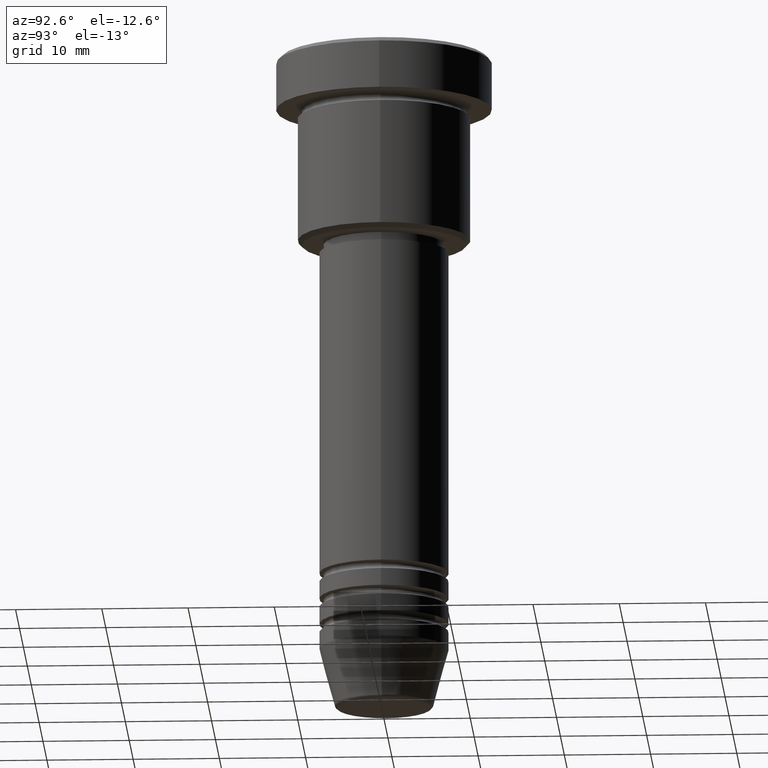
[diagram: clean part render]
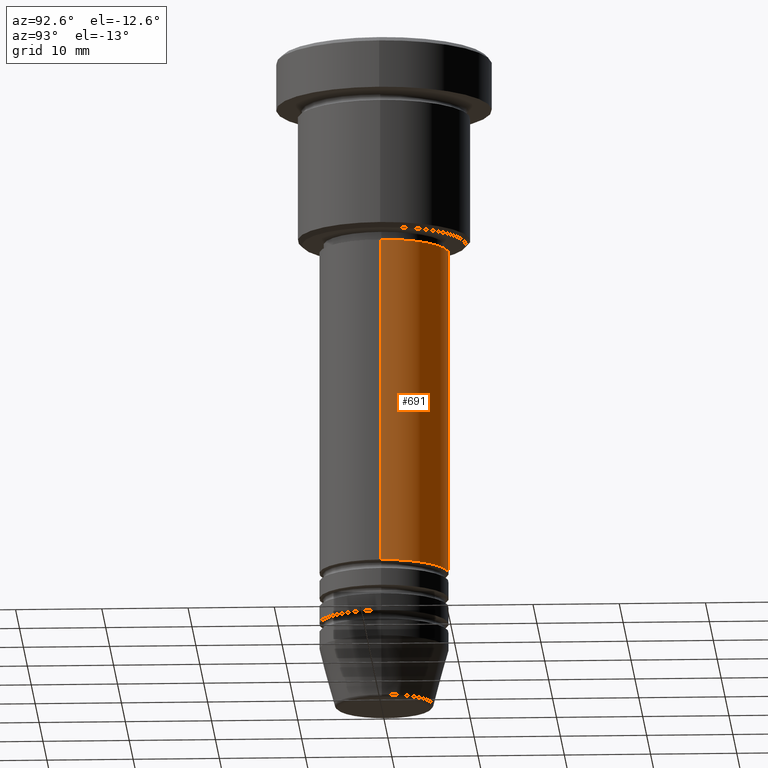
[diagram: same view with one face highlighted and labeled with its STEP entity id]
A machine part, auxiliary view. The second image highlights one B-rep face of the part: STEP entity #691.
In plain terms, the highlighted cylindrical surface (partial cylindrical patch) has radius 7.5 mm, axis along (-0, -0, 1).
Its self-contained STEP definition (entity closure, byte-faithful):
#66 = VECTOR ( 'NONE', #909, 1000.000000000000000 ) ;
#72 = CIRCLE ( 'NONE', #244, 7.500000000000000000 ) ;
#88 = EDGE_CURVE ( 'NONE', #457, #121, #331, .T. ) ;
#121 = VERTEX_POINT ( 'NONE', #159 ) ;
#155 = CARTESIAN_POINT ( 'NONE',  ( 0.000000000000000000, 0.000000000000000000, -23.00000000000000711 ) ) ;
#159 = CARTESIAN_POINT ( 'NONE',  ( -7.500000000000000000, 9.184850993605147944E-16, -23.00000000000000711 ) ) ;
#173 = ORIENTED_EDGE ( 'NONE', *, *, #88, .T. ) ;
#174 = CARTESIAN_POINT ( 'NONE',  ( 0.000000000000000000, 0.000000000000000000, -60.99999999999998579 ) ) ;
#201 = CIRCLE ( 'NONE', #520, 7.500000000000000000 ) ;
#240 = CARTESIAN_POINT ( 'NONE',  ( 7.500000000000000000, 0.000000000000000000, -60.99999999999998579 ) ) ;
#244 = AXIS2_PLACEMENT_3D ( 'NONE', #174, #1181, #430 ) ;
#258 = DIRECTION ( 'NONE',  ( -0.000000000000000000, -0.000000000000000000, 1.000000000000000000 ) ) ;
#268 = CARTESIAN_POINT ( 'NONE',  ( 7.500000000000000000, 0.000000000000000000, 0.000000000000000000 ) ) ;
#331 = LINE ( 'NONE', #963, #653 ) ;
#352 = DIRECTION ( 'NONE',  ( -0.000000000000000000, -0.000000000000000000, 1.000000000000000000 ) ) ;
#379 = CARTESIAN_POINT ( 'NONE',  ( 7.500000000000000000, 0.000000000000000000, -23.00000000000000711 ) ) ;
#423 = DIRECTION ( 'NONE',  ( -0.000000000000000000, -0.000000000000000000, 1.000000000000000000 ) ) ;
#430 = DIRECTION ( 'NONE',  ( 1.000000000000000000, 0.000000000000000000, 0.000000000000000000 ) ) ;
#439 = ORIENTED_EDGE ( 'NONE', *, *, #783, .F. ) ;
#442 = LINE ( 'NONE', #268, #66 ) ;
#445 = ORIENTED_EDGE ( 'NONE', *, *, #639, .F. ) ;
#457 = VERTEX_POINT ( 'NONE', #757 ) ;
#520 = AXIS2_PLACEMENT_3D ( 'NONE', #155, #423, #788 ) ;
#530 = AXIS2_PLACEMENT_3D ( 'NONE', #732, #352, #998 ) ;
#600 = VERTEX_POINT ( 'NONE', #240 ) ;
#639 = EDGE_CURVE ( 'NONE', #826, #121, #201, .T. ) ;
#646 = CYLINDRICAL_SURFACE ( 'NONE', #530, 7.500000000000000000 ) ;
#653 = VECTOR ( 'NONE', #258, 1000.000000000000000 ) ;
#691 = ADVANCED_FACE ( 'NONE', ( #817 ), #646, .T. ) ;
#732 = CARTESIAN_POINT ( 'NONE',  ( 0.000000000000000000, 0.000000000000000000, 0.000000000000000000 ) ) ;
#757 = CARTESIAN_POINT ( 'NONE',  ( -7.500000000000000000, 9.184850993605147944E-16, -60.99999999999998579 ) ) ;
#783 = EDGE_CURVE ( 'NONE', #600, #826, #442, .T. ) ;
#788 = DIRECTION ( 'NONE',  ( 1.000000000000000000, 0.000000000000000000, 0.000000000000000000 ) ) ;
#817 = FACE_OUTER_BOUND ( 'NONE', #821, .T. ) ;
#821 = EDGE_LOOP ( 'NONE', ( #1139, #173, #445, #439 ) ) ;
#826 = VERTEX_POINT ( 'NONE', #379 ) ;
#909 = DIRECTION ( 'NONE',  ( -0.000000000000000000, -0.000000000000000000, 1.000000000000000000 ) ) ;
#963 = CARTESIAN_POINT ( 'NONE',  ( -7.500000000000000000, 9.184850993605147944E-16, 0.000000000000000000 ) ) ;
#998 = DIRECTION ( 'NONE',  ( 1.000000000000000000, 0.000000000000000000, 0.000000000000000000 ) ) ;
#1136 = EDGE_CURVE ( 'NONE', #600, #457, #72, .T. ) ;
#1139 = ORIENTED_EDGE ( 'NONE', *, *, #1136, .T. ) ;
#1181 = DIRECTION ( 'NONE',  ( -0.000000000000000000, -0.000000000000000000, 1.000000000000000000 ) ) ;